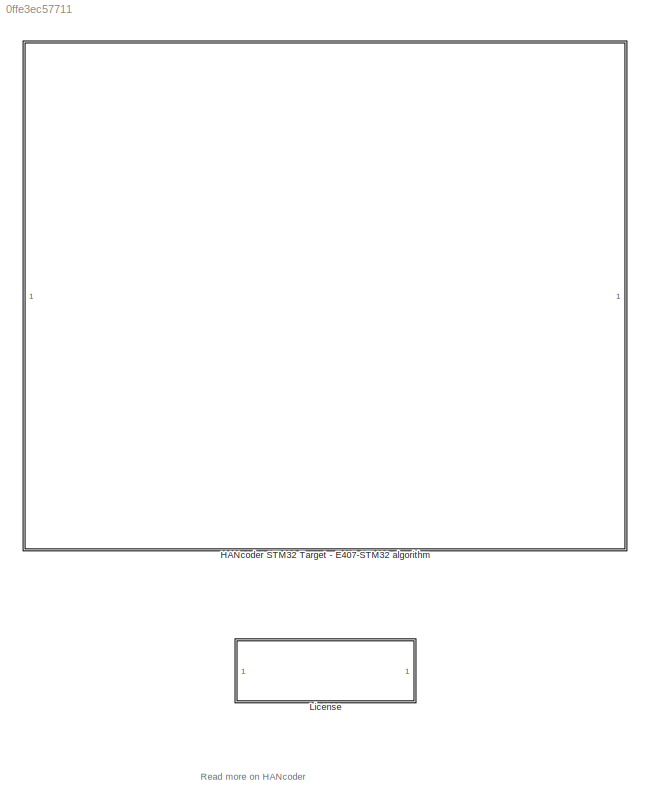
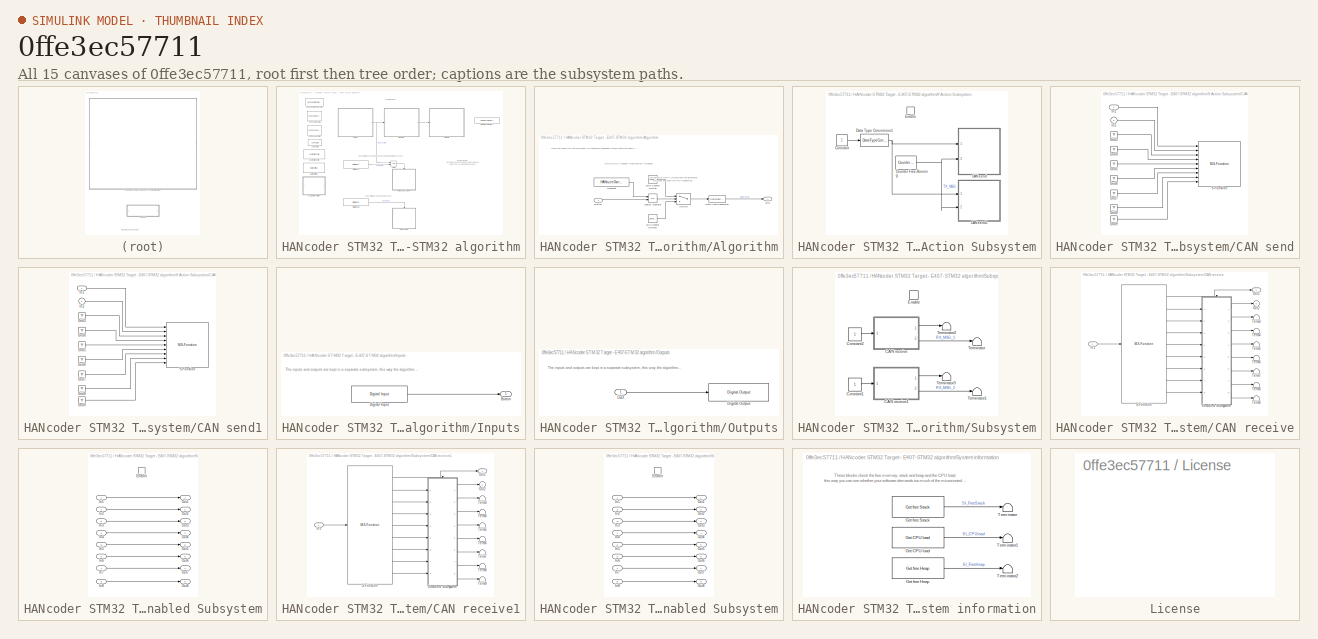
[diagram: thumbnail index - all 15 canvases of the model, root first then tree order]
MODEL slx_0ffe3ec57711
KIND model
CONFIG AbsTol = auto
CONFIG EnableMultiTasking = off
CONFIG FixedStep = 0.01
CONFIG MaxStep = auto
CONFIG MinStep = auto
CONFIG PreLoadFcn = librarySetup\neval([bdroot,'_startup']) %Calling [modelName]_startup.m
CONFIG RelTol = 1e-3
CONFIG SampleTimeConstraint = Unconstrained
CONFIG Solver = FixedStepDiscrete
CONFIG SolverName = FixedStepDiscrete
CONFIG StartTime = 0.0
CONFIG StopTime = 1
BLOCK [SubSystem] HANcoder STM32 Target - E407-STM32 algorithm
  CopyFcn = HANcoderChecks('Copy');
  MoveFcn = HANcoderChecks('MoveE407');
  NameChangeFcn = HANcoderChecks('NameChangeE407');
  Ports = []
  RequestExecContextInheritance = off
BLOCK [Logic] HANcoder STM32 Target - E407-STM32 algorithm/AND3
  AllPortsSameDT = off
  IconShape = distinctive
  OutDataTypeStr = boolean
  Ports = [2, 1]
BLOCK [SubSystem] HANcoder STM32 Target - E407-STM32 algorithm/Algorithm
  Ports = [1, 1]
  RequestExecContextInheritance = off
BLOCK [Reference] HANcoder STM32 Target - E407-STM32 algorithm/Algorithm/10Hz Counter Limiter  REF=simulink/Sources/Counter
Limited
  Ports = [0, 1]
  SourceBlock = simulink/Sources/Counter\nLimited
  SourceProductBaseCode = SL
  SourceProductName = Simulink
  SourceType = Counter Limited
BLOCK [Reference] HANcoder STM32 Target - E407-STM32 algorithm/Algorithm/5Hz Counter Limited  REF=simulink/Sources/Counter
Limited
  Ports = [0, 1]
  SourceBlock = simulink/Sources/Counter\nLimited
  SourceProductBaseCode = SL
  SourceProductName = Simulink
  SourceType = Counter Limited
BLOCK [Inport] HANcoder STM32 Target - E407-STM32 algorithm/Algorithm/Button
  IconDisplay = Port number
BLOCK [Constant] HANcoder STM32 Target - E407-STM32 algorithm/Algorithm/Constant
  OutDataTypeStr = boolean
  Value = HANtuneOverride
BLOCK [DataTypeConversion] HANcoder STM32 Target - E407-STM32 algorithm/Algorithm/Data Type Conversion
  OutDataTypeStr = boolean
  RndMeth = Floor
  SaturateOnIntegerOverflow = off
BLOCK [Outport] HANcoder STM32 Target - E407-STM32 algorithm/Algorithm/LED
  IconDisplay = Port number
BLOCK [Logic] HANcoder STM32 Target - E407-STM32 algorithm/Algorithm/Logical Operator
  AllPortsSameDT = off
  Operator = OR
  OutDataTypeStr = boolean
  Ports = [2, 1]
BLOCK [Switch] HANcoder STM32 Target - E407-STM32 algorithm/Algorithm/Switch
  Criteria = u2 > Threshold
  InputSameDT = off
  SaturateOnIntegerOverflow = off
BLOCK [Reference] HANcoder STM32 Target - E407-STM32 algorithm/Base Sample Time config  REF=HANcoder_STM32_Target/STM32-E407/System Config/Base Sample Time config
  Description = HANcoder Target STM32-E407 blockset version 0.5
  Ports = []
  SourceBlock = HANcoder_STM32_Target/STM32-E407/System Config/Base Sample Time config
  SourceProductName = HANcoder STM32 Target
  SourceType = Base Sample Time config
  Tag = HANcoder_TARGET_STM32_E407
  UserDataPersistent = on
BLOCK [Reference] HANcoder STM32 Target - E407-STM32 algorithm/Build settings  REF=HANcoder_STM32_Target/STM32-E407/System Config/Build settings
  Ports = []
  SourceBlock = HANcoder_STM32_Target/STM32-E407/System Config/Build settings
  SourceProductName = HANcoder STM32 Target
  SourceType = Build Settings
  Tag = HANcoder_TARGET_STM32_E407
  UserDataPersistent = on
BLOCK [Reference] HANcoder STM32 Target - E407-STM32 algorithm/CAN config  REF=HANcoder_STM32_Target/STM32-E407/System Config/CAN config
  Ports = []
  SourceBlock = HANcoder_STM32_Target/STM32-E407/System Config/CAN config
  SourceProductName = HANcoder STM32 Target
  SourceType = CAN config
  Tag = HANcoder_TARGET_STM32_E407
  UserDataPersistent = on
BLOCK [Reference] HANcoder STM32 Target - E407-STM32 algorithm/Custom ID config  REF=HANcoder_STM32_Target/STM32-E407/System Config/Custom ID config
  Ports = []
  SourceBlock = HANcoder_STM32_Target/STM32-E407/System Config/Custom ID config
  SourceProductName = HANcoder STM32 Target
  SourceType = Custom ID config
  Tag = HANcoder_TARGET_STM32_E407
  UserDataPersistent = on
BLOCK [DataStoreMemory] HANcoder STM32 Target - E407-STM32 algorithm/Data Store Memory
  DataStoreName = HANtuneOverride1
  ReadBeforeWriteMsg = warning
  ShowAdditionalParam = off
  WriteAfterReadMsg = warning
  WriteAfterWriteMsg = warning
BLOCK [Reference] HANcoder STM32 Target - E407-STM32 algorithm/Digital Input  REF=HANcoder_STM32_Target/STM32-E407/Digital Inputs/Digital Input
  Ports = [0, 1]
  SourceBlock = HANcoder_STM32_Target/STM32-E407/Digital Inputs/Digital Input
  SourceProductName = HANcoder STM32 Target
  SourceType = Digital Input
  Tag = HANcoder_TARGET_STM32_E407
  UserDataPersistent = on
BLOCK [Reference] HANcoder STM32 Target - E407-STM32 algorithm/Digital Input1  REF=HANcoder_STM32_Target/STM32-E407/Digital Inputs/Digital Input
  Ports = [0, 1]
  SourceBlock = HANcoder_STM32_Target/STM32-E407/Digital Inputs/Digital Input
  SourceProductName = HANcoder STM32 Target
  SourceType = Digital Input
  Tag = HANcoder_TARGET_STM32_E407
  UserDataPersistent = on
BLOCK [SubSystem] HANcoder STM32 Target - E407-STM32 algorithm/If Action Subsystem
  Ports = [0, 0, 1]
  RequestExecContextInheritance = off
  TreatAsAtomicUnit = on
BLOCK [SubSystem] HANcoder STM32 Target - E407-STM32 algorithm/If Action Subsystem/CAN send
  AncestorBlock = HANcoder_STM32_Target/STM32-E407/CAN/CAN/CAN send
  MoveFcn = drawLogos
  Ports = [2]
  RequestExecContextInheritance = off
  Tag = HANcoder_TARGET_STM32_E407
  UserDataPersistent = on
BLOCK [Ground] HANcoder STM32 Target - E407-STM32 algorithm/If Action Subsystem/CAN send/Gnd3
BLOCK [Ground] HANcoder STM32 Target - E407-STM32 algorithm/If Action Subsystem/CAN send/Gnd4
BLOCK [Ground] HANcoder STM32 Target - E407-STM32 algorithm/If Action Subsystem/CAN send/Gnd5
BLOCK [Ground] HANcoder STM32 Target - E407-STM32 algorithm/If Action Subsystem/CAN send/Gnd6
BLOCK [Ground] HANcoder STM32 Target - E407-STM32 algorithm/If Action Subsystem/CAN send/Gnd7
BLOCK [Ground] HANcoder STM32 Target - E407-STM32 algorithm/If Action Subsystem/CAN send/Gnd8
BLOCK [Ground] HANcoder STM32 Target - E407-STM32 algorithm/If Action Subsystem/CAN send/Gnd9
BLOCK [Inport] HANcoder STM32 Target - E407-STM32 algorithm/If Action Subsystem/CAN send/In1
  IconDisplay = Port number
BLOCK [Inport] HANcoder STM32 Target - E407-STM32 algorithm/If Action Subsystem/CAN send/In2
  IconDisplay = Port number
  Port = 2
BLOCK [M-S-Function] HANcoder STM32 Target - E407-STM32 algorithm/If Action Subsystem/CAN send/S-Function
  FunctionName = sfcn_can_send
  Parameters = tsamp, canBus, frameType, inputNumber, dataType, byteOrder
  Ports = [9]
BLOCK [SubSystem] HANcoder STM32 Target - E407-STM32 algorithm/If Action Subsystem/CAN send1
  AncestorBlock = HANcoder_STM32_Target/STM32-E407/CAN/CAN/CAN send
  MoveFcn = drawLogos
  Ports = [2]
  RequestExecContextInheritance = off
  Tag = HANcoder_TARGET_STM32_E407
  UserDataPersistent = on
BLOCK [Ground] HANcoder STM32 Target - E407-STM32 algorithm/If Action Subsystem/CAN send1/Gnd3
BLOCK [Ground] HANcoder STM32 Target - E407-STM32 algorithm/If Action Subsystem/CAN send1/Gnd4
BLOCK [Ground] HANcoder STM32 Target - E407-STM32 algorithm/If Action Subsystem/CAN send1/Gnd5
BLOCK [Ground] HANcoder STM32 Target - E407-STM32 algorithm/If Action Subsystem/CAN send1/Gnd6
BLOCK [Ground] HANcoder STM32 Target - E407-STM32 algorithm/If Action Subsystem/CAN send1/Gnd7
BLOCK [Ground] HANcoder STM32 Target - E407-STM32 algorithm/If Action Subsystem/CAN send1/Gnd8
BLOCK [Ground] HANcoder STM32 Target - E407-STM32 algorithm/If Action Subsystem/CAN send1/Gnd9
BLOCK [Inport] HANcoder STM32 Target - E407-STM32 algorithm/If Action Subsystem/CAN send1/In1
  IconDisplay = Port number
BLOCK [Inport] HANcoder STM32 Target - E407-STM32 algorithm/If Action Subsystem/CAN send1/In2
  IconDisplay = Port number
  Port = 2
BLOCK [M-S-Function] HANcoder STM32 Target - E407-STM32 algorithm/If Action Subsystem/CAN send1/S-Function
  FunctionName = sfcn_can_send
  Parameters = tsamp, canBus, frameType, inputNumber, dataType, byteOrder
  Ports = [9]
BLOCK [Constant] HANcoder STM32 Target - E407-STM32 algorithm/If Action Subsystem/Constant
BLOCK [Reference] HANcoder STM32 Target - E407-STM32 algorithm/If Action Subsystem/Counter Free-Running  REF=simulink/Sources/Counter
Free-Running
  Ports = [0, 1]
  SourceBlock = simulink/Sources/Counter\nFree-Running
  SourceProductBaseCode = SL
  SourceProductName = Simulink
  SourceType = Counter Free-Running
BLOCK [DataTypeConversion] HANcoder STM32 Target - E407-STM32 algorithm/If Action Subsystem/Data Type Conversion1
  OutDataTypeStr = uint32
  RndMeth = Floor
  SaturateOnIntegerOverflow = off
BLOCK [EnablePort] HANcoder STM32 Target - E407-STM32 algorithm/If Action Subsystem/Enable
  Ports = []
BLOCK [SubSystem] HANcoder STM32 Target - E407-STM32 algorithm/Inputs
  Ports = [0, 1]
  RequestExecContextInheritance = off
BLOCK [Outport] HANcoder STM32 Target - E407-STM32 algorithm/Inputs/Button
  IconDisplay = Port number
BLOCK [Reference] HANcoder STM32 Target - E407-STM32 algorithm/Inputs/Digital Input  REF=HANcoder_STM32_Target/STM32-E407/Digital Inputs/Digital Input
  Ports = [0, 1]
  SourceBlock = HANcoder_STM32_Target/STM32-E407/Digital Inputs/Digital Input
  SourceProductName = HANcoder STM32 Target
  SourceType = Digital Input
  Tag = HANcoder_TARGET_STM32_E407
  UserDataPersistent = on
BLOCK [SubSystem] HANcoder STM32 Target - E407-STM32 algorithm/Outputs
  Ports = [1]
  RequestExecContextInheritance = off
BLOCK [Reference] HANcoder STM32 Target - E407-STM32 algorithm/Outputs/Digital Output  REF=HANcoder_STM32_Target/STM32-E407/Digital Outputs/Digital Output
  Ports = [1]
  SourceBlock = HANcoder_STM32_Target/STM32-E407/Digital Outputs/Digital Output
  SourceProductName = HANcoder STM32 Target
  SourceType = Digital Output
  Tag = HANcoder_TARGET_STM32_E407
  UserDataPersistent = on
BLOCK [Inport] HANcoder STM32 Target - E407-STM32 algorithm/Outputs/LED
  IconDisplay = Port number
BLOCK [SubSystem] HANcoder STM32 Target - E407-STM32 algorithm/Subsystem
  Ports = [0, 0, 1]
  RequestExecContextInheritance = off
BLOCK [SubSystem] HANcoder STM32 Target - E407-STM32 algorithm/Subsystem/CAN receive
  AncestorBlock = HANcoder_STM32_Target/STM32-E407/CAN/CAN/CAN receive
  MoveFcn = drawLogos
  Ports = [1, 2]
  RequestExecContextInheritance = off
  Tag = HANcoder_TARGET_STM32_E407
  UserDataPersistent = on
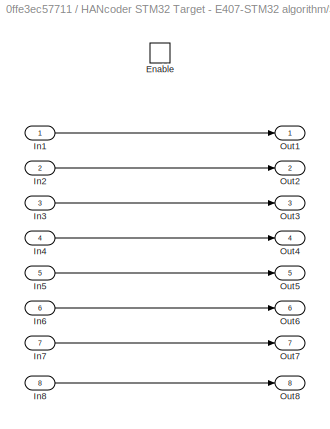
BLOCK [SubSystem] HANcoder STM32 Target - E407-STM32 algorithm/Subsystem/CAN receive/Enabled Subsystem
  Ports = [8, 8, 1]
  RequestExecContextInheritance = off
  TreatAsAtomicUnit = on
BLOCK [EnablePort] HANcoder STM32 Target - E407-STM32 algorithm/Subsystem/CAN receive/Enabled Subsystem/Enable
  Ports = []
BLOCK [Inport] HANcoder STM32 Target - E407-STM32 algorithm/Subsystem/CAN receive/Enabled Subsystem/In1
  IconDisplay = Port number
BLOCK [Inport] HANcoder STM32 Target - E407-STM32 algorithm/Subsystem/CAN receive/Enabled Subsystem/In2
  IconDisplay = Port number
  Port = 2
BLOCK [Inport] HANcoder STM32 Target - E407-STM32 algorithm/Subsystem/CAN receive/Enabled Subsystem/In3
  IconDisplay = Port number
  Port = 3
BLOCK [Inport] HANcoder STM32 Target - E407-STM32 algorithm/Subsystem/CAN receive/Enabled Subsystem/In4
  IconDisplay = Port number
  Port = 4
BLOCK [Inport] HANcoder STM32 Target - E407-STM32 algorithm/Subsystem/CAN receive/Enabled Subsystem/In5
  IconDisplay = Port number
  Port = 5
BLOCK [Inport] HANcoder STM32 Target - E407-STM32 algorithm/Subsystem/CAN receive/Enabled Subsystem/In6
  IconDisplay = Port number
  Port = 6
BLOCK [Inport] HANcoder STM32 Target - E407-STM32 algorithm/Subsystem/CAN receive/Enabled Subsystem/In7
  IconDisplay = Port number
  Port = 7
BLOCK [Inport] HANcoder STM32 Target - E407-STM32 algorithm/Subsystem/CAN receive/Enabled Subsystem/In8
  IconDisplay = Port number
  Port = 8
BLOCK [Outport] HANcoder STM32 Target - E407-STM32 algorithm/Subsystem/CAN receive/Enabled Subsystem/Out1
  IconDisplay = Port number
BLOCK [Outport] HANcoder STM32 Target - E407-STM32 algorithm/Subsystem/CAN receive/Enabled Subsystem/Out2
  IconDisplay = Port number
  Port = 2
BLOCK [Outport] HANcoder STM32 Target - E407-STM32 algorithm/Subsystem/CAN receive/Enabled Subsystem/Out3
  IconDisplay = Port number
  Port = 3
BLOCK [Outport] HANcoder STM32 Target - E407-STM32 algorithm/Subsystem/CAN receive/Enabled Subsystem/Out4
  IconDisplay = Port number
  Port = 4
BLOCK [Outport] HANcoder STM32 Target - E407-STM32 algorithm/Subsystem/CAN receive/Enabled Subsystem/Out5
  IconDisplay = Port number
  Port = 5
BLOCK [Outport] HANcoder STM32 Target - E407-STM32 algorithm/Subsystem/CAN receive/Enabled Subsystem/Out6
  IconDisplay = Port number
  Port = 6
BLOCK [Outport] HANcoder STM32 Target - E407-STM32 algorithm/Subsystem/CAN receive/Enabled Subsystem/Out7
  IconDisplay = Port number
  Port = 7
BLOCK [Outport] HANcoder STM32 Target - E407-STM32 algorithm/Subsystem/CAN receive/Enabled Subsystem/Out8
  IconDisplay = Port number
  Port = 8
BLOCK [Inport] HANcoder STM32 Target - E407-STM32 algorithm/Subsystem/CAN receive/In1
  IconDisplay = Port number
BLOCK [Outport] HANcoder STM32 Target - E407-STM32 algorithm/Subsystem/CAN receive/Out1
  IconDisplay = Port number
BLOCK [Outport] HANcoder STM32 Target - E407-STM32 algorithm/Subsystem/CAN receive/Out2
  IconDisplay = Port number
  Port = 2
BLOCK [M-S-Function] HANcoder STM32 Target - E407-STM32 algorithm/Subsystem/CAN receive/S-Function
  FunctionName = sfcn_can_receive
  Parameters = tsamp, canBus, outputNumber, dataType, byteOrder
  Ports = [1, 9]
BLOCK [Terminator] HANcoder STM32 Target - E407-STM32 algorithm/Subsystem/CAN receive/Term3
BLOCK [Terminator] HANcoder STM32 Target - E407-STM32 algorithm/Subsystem/CAN receive/Term4
BLOCK [Terminator] HANcoder STM32 Target - E407-STM32 algorithm/Subsystem/CAN receive/Term5
BLOCK [Terminator] HANcoder STM32 Target - E407-STM32 algorithm/Subsystem/CAN receive/Term6
BLOCK [Terminator] HANcoder STM32 Target - E407-STM32 algorithm/Subsystem/CAN receive/Term7
BLOCK [Terminator] HANcoder STM32 Target - E407-STM32 algorithm/Subsystem/CAN receive/Term8
BLOCK [Terminator] HANcoder STM32 Target - E407-STM32 algorithm/Subsystem/CAN receive/Term9
BLOCK [SubSystem] HANcoder STM32 Target - E407-STM32 algorithm/Subsystem/CAN receive1
  AncestorBlock = HANcoder_STM32_Target/STM32-E407/CAN/CAN/CAN receive
  MoveFcn = drawLogos
  Ports = [1, 2]
  RequestExecContextInheritance = off
  Tag = HANcoder_TARGET_STM32_E407
  UserDataPersistent = on
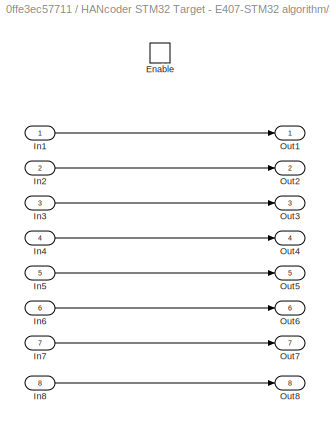
BLOCK [SubSystem] HANcoder STM32 Target - E407-STM32 algorithm/Subsystem/CAN receive1/Enabled Subsystem
  Ports = [8, 8, 1]
  RequestExecContextInheritance = off
  TreatAsAtomicUnit = on
BLOCK [EnablePort] HANcoder STM32 Target - E407-STM32 algorithm/Subsystem/CAN receive1/Enabled Subsystem/Enable
  Ports = []
BLOCK [Inport] HANcoder STM32 Target - E407-STM32 algorithm/Subsystem/CAN receive1/Enabled Subsystem/In1
  IconDisplay = Port number
BLOCK [Inport] HANcoder STM32 Target - E407-STM32 algorithm/Subsystem/CAN receive1/Enabled Subsystem/In2
  IconDisplay = Port number
  Port = 2
BLOCK [Inport] HANcoder STM32 Target - E407-STM32 algorithm/Subsystem/CAN receive1/Enabled Subsystem/In3
  IconDisplay = Port number
  Port = 3
BLOCK [Inport] HANcoder STM32 Target - E407-STM32 algorithm/Subsystem/CAN receive1/Enabled Subsystem/In4
  IconDisplay = Port number
  Port = 4
BLOCK [Inport] HANcoder STM32 Target - E407-STM32 algorithm/Subsystem/CAN receive1/Enabled Subsystem/In5
  IconDisplay = Port number
  Port = 5
BLOCK [Inport] HANcoder STM32 Target - E407-STM32 algorithm/Subsystem/CAN receive1/Enabled Subsystem/In6
  IconDisplay = Port number
  Port = 6
BLOCK [Inport] HANcoder STM32 Target - E407-STM32 algorithm/Subsystem/CAN receive1/Enabled Subsystem/In7
  IconDisplay = Port number
  Port = 7
BLOCK [Inport] HANcoder STM32 Target - E407-STM32 algorithm/Subsystem/CAN receive1/Enabled Subsystem/In8
  IconDisplay = Port number
  Port = 8
BLOCK [Outport] HANcoder STM32 Target - E407-STM32 algorithm/Subsystem/CAN receive1/Enabled Subsystem/Out1
  IconDisplay = Port number
BLOCK [Outport] HANcoder STM32 Target - E407-STM32 algorithm/Subsystem/CAN receive1/Enabled Subsystem/Out2
  IconDisplay = Port number
  Port = 2
BLOCK [Outport] HANcoder STM32 Target - E407-STM32 algorithm/Subsystem/CAN receive1/Enabled Subsystem/Out3
  IconDisplay = Port number
  Port = 3
BLOCK [Outport] HANcoder STM32 Target - E407-STM32 algorithm/Subsystem/CAN receive1/Enabled Subsystem/Out4
  IconDisplay = Port number
  Port = 4
BLOCK [Outport] HANcoder STM32 Target - E407-STM32 algorithm/Subsystem/CAN receive1/Enabled Subsystem/Out5
  IconDisplay = Port number
  Port = 5
BLOCK [Outport] HANcoder STM32 Target - E407-STM32 algorithm/Subsystem/CAN receive1/Enabled Subsystem/Out6
  IconDisplay = Port number
  Port = 6
BLOCK [Outport] HANcoder STM32 Target - E407-STM32 algorithm/Subsystem/CAN receive1/Enabled Subsystem/Out7
  IconDisplay = Port number
  Port = 7
BLOCK [Outport] HANcoder STM32 Target - E407-STM32 algorithm/Subsystem/CAN receive1/Enabled Subsystem/Out8
  IconDisplay = Port number
  Port = 8
BLOCK [Inport] HANcoder STM32 Target - E407-STM32 algorithm/Subsystem/CAN receive1/In1
  IconDisplay = Port number
BLOCK [Outport] HANcoder STM32 Target - E407-STM32 algorithm/Subsystem/CAN receive1/Out1
  IconDisplay = Port number
BLOCK [Outport] HANcoder STM32 Target - E407-STM32 algorithm/Subsystem/CAN receive1/Out2
  IconDisplay = Port number
  Port = 2
BLOCK [M-S-Function] HANcoder STM32 Target - E407-STM32 algorithm/Subsystem/CAN receive1/S-Function
  FunctionName = sfcn_can_receive
  Parameters = tsamp, canBus, outputNumber, dataType, byteOrder
  Ports = [1, 9]
BLOCK [Terminator] HANcoder STM32 Target - E407-STM32 algorithm/Subsystem/CAN receive1/Term3
BLOCK [Terminator] HANcoder STM32 Target - E407-STM32 algorithm/Subsystem/CAN receive1/Term4
BLOCK [Terminator] HANcoder STM32 Target - E407-STM32 algorithm/Subsystem/CAN receive1/Term5
BLOCK [Terminator] HANcoder STM32 Target - E407-STM32 algorithm/Subsystem/CAN receive1/Term6
BLOCK [Terminator] HANcoder STM32 Target - E407-STM32 algorithm/Subsystem/CAN receive1/Term7
BLOCK [Terminator] HANcoder STM32 Target - E407-STM32 algorithm/Subsystem/CAN receive1/Term8
BLOCK [Terminator] HANcoder STM32 Target - E407-STM32 algorithm/Subsystem/CAN receive1/Term9
BLOCK [Constant] HANcoder STM32 Target - E407-STM32 algorithm/Subsystem/Constant1
  OutDataTypeStr = uint32
BLOCK [Constant] HANcoder STM32 Target - E407-STM32 algorithm/Subsystem/Constant2
  OutDataTypeStr = uint32
BLOCK [EnablePort] HANcoder STM32 Target - E407-STM32 algorithm/Subsystem/Enable
  Ports = []
BLOCK [Terminator] HANcoder STM32 Target - E407-STM32 algorithm/Subsystem/Terminator
BLOCK [Terminator] HANcoder STM32 Target - E407-STM32 algorithm/Subsystem/Terminator1
BLOCK [Terminator] HANcoder STM32 Target - E407-STM32 algorithm/Subsystem/Terminator2
BLOCK [Terminator] HANcoder STM32 Target - E407-STM32 algorithm/Subsystem/Terminator3
BLOCK [SubSystem] HANcoder STM32 Target - E407-STM32 algorithm/System information
  Ports = []
  RequestExecContextInheritance = off
BLOCK [Reference] HANcoder STM32 Target - E407-STM32 algorithm/System information/Get CPU load  REF=HANcoder_STM32_Target/STM32-E407/System Management/Get CPU load
  Ports = [0, 1]
  SourceBlock = HANcoder_STM32_Target/STM32-E407/System Management/Get CPU load
  SourceProductName = HANcoder STM32 Target
  SourceType = Get CPU load
  Tag = HANcoder_TARGET_STM32_E407
  UserDataPersistent = on
BLOCK [Reference] HANcoder STM32 Target - E407-STM32 algorithm/System information/Get free Heap  REF=HANcoder_STM32_Target/STM32-E407/System Management/Get free Heap
  Ports = [0, 1]
  SourceBlock = HANcoder_STM32_Target/STM32-E407/System Management/Get free Heap
  SourceProductName = HANcoder STM32 Target
  SourceType = Get free Heap
  Tag = HANcoder_TARGET_STM32_E407
  UserDataPersistent = on
BLOCK [Reference] HANcoder STM32 Target - E407-STM32 algorithm/System information/Get free Stack  REF=HANcoder_STM32_Target/STM32-E407/System Management/Get free Stack
  Ports = [0, 1]
  SourceBlock = HANcoder_STM32_Target/STM32-E407/System Management/Get free Stack
  SourceProductName = HANcoder STM32 Target
  SourceType = Get free Stacl
  Tag = HANcoder_TARGET_STM32_E407
  UserDataPersistent = on
BLOCK [Terminator] HANcoder STM32 Target - E407-STM32 algorithm/System information/Terminator
BLOCK [Terminator] HANcoder STM32 Target - E407-STM32 algorithm/System information/Terminator1
BLOCK [Terminator] HANcoder STM32 Target - E407-STM32 algorithm/System information/Terminator2
BLOCK [Reference] HANcoder STM32 Target - E407-STM32 algorithm/XCP on CAN config  REF=HANcoder_STM32_Target/STM32-E407/System Config/XCP on CAN config
  Commented = on
  Ports = []
  SourceBlock = HANcoder_STM32_Target/STM32-E407/System Config/XCP on CAN config
  SourceProductName = HANcoder STM32 Target
  SourceType = XCP on CAN config
  Tag = HANcoder_TARGET_STM32_E407
  UserDataPersistent = on
BLOCK [Reference] HANcoder STM32 Target - E407-STM32 algorithm/XCP on USB config  REF=HANcoder_STM32_Target/STM32-E407/System Config/XCP on USB config
  Ports = []
  SourceBlock = HANcoder_STM32_Target/STM32-E407/System Config/XCP on USB config
  SourceProductName = HANcoder STM32 Target
  SourceType = XCP on USB config
  Tag = HANcoder_TARGET_STM32_E407
  UserDataPersistent = on
BLOCK [SubSystem] License
  MoveFcn = HANcoderChecks('MoveLicenseBlock');
  NameChangeFcn = HANcoderChecks('NameChangeLicenseBlock');
  OpenFcn = winopen('License.pdf')
  Ports = []
  RequestExecContextInheritance = off
  ShowPortLabels = none
ANNOTATION (root): Read more on HANcoder
ANNOTATION HANcoder STM32 Target - E407-STM32 algorithm: Basic principle: - Board id 1 sends a count over both CAN buses. - Other board receives the messages.
ANNOTATION HANcoder STM32 Target - E407-STM32 algorithm: Board with ID 2 receives the messages
ANNOTATION HANcoder STM32 Target - E407-STM32 algorithm: Board with ID1 sends a message when the WKUP Button is pressed
ANNOTATION HANcoder STM32 Target - E407-STM32 algorithm: Template model
ANNOTATION HANcoder STM32 Target - E407-STM32 algorithm/Algorithm: Here the algorithm can be placed. No hardware dependent blocks should be used here.
ANNOTATION HANcoder STM32 Target - E407-STM32 algorithm/Algorithm: Switch LED frequency when button is pressed
ANNOTATION HANcoder STM32 Target - E407-STM32 algorithm/Algorithm: The button or the HANtuneOverride parameter switches between the two frequencies.
ANNOTATION HANcoder STM32 Target - E407-STM32 algorithm/Inputs: The inputs and outputs are kept in a separate subsystem, this way the algorithm can easily be transferred to different hardware
ANNOTATION HANcoder STM32 Target - E407-STM32 algorithm/Outputs: The inputs and outputs are kept in a separate subsystem, this way the algorithm can easily be transferred to different hardware
ANNOTATION HANcoder STM32 Target - E407-STM32 algorithm/System information: These blocks check the free memory: stack and heap and the CPU load, this way you can see whether your software demands too much of the microcontroller
LINE HANcoder STM32 Target - E407-STM32 algorithm/AND3:1 -> HANcoder STM32 Target - E407-STM32 algorithm/If Action Subsystem:enable
LINE HANcoder STM32 Target - E407-STM32 algorithm/Algorithm/10Hz Counter Limiter:1 -> HANcoder STM32 Target - E407-STM32 algorithm/Algorithm/Switch:1
LINE HANcoder STM32 Target - E407-STM32 algorithm/Algorithm/5Hz Counter Limited:1 -> HANcoder STM32 Target - E407-STM32 algorithm/Algorithm/Switch:3
LINE HANcoder STM32 Target - E407-STM32 algorithm/Algorithm/Button:1 -> HANcoder STM32 Target - E407-STM32 algorithm/Algorithm/Logical Operator:2
LINE HANcoder STM32 Target - E407-STM32 algorithm/Algorithm/Constant:1 -> HANcoder STM32 Target - E407-STM32 algorithm/Algorithm/Logical Operator:1
LINE HANcoder STM32 Target - E407-STM32 algorithm/Algorithm/Data Type Conversion:1 -> HANcoder STM32 Target - E407-STM32 algorithm/Algorithm/LED:1
LINE HANcoder STM32 Target - E407-STM32 algorithm/Algorithm/Logical Operator:1 -> HANcoder STM32 Target - E407-STM32 algorithm/Algorithm/Switch:2
LINE HANcoder STM32 Target - E407-STM32 algorithm/Algorithm/Switch:1 -> HANcoder STM32 Target - E407-STM32 algorithm/Algorithm/Data Type Conversion:1
LINE HANcoder STM32 Target - E407-STM32 algorithm/Algorithm:1 -> HANcoder STM32 Target - E407-STM32 algorithm/Outputs:1
LINE HANcoder STM32 Target - E407-STM32 algorithm/Digital Input1:1 -> HANcoder STM32 Target - E407-STM32 algorithm/Subsystem:enable
LINE HANcoder STM32 Target - E407-STM32 algorithm/Digital Input:1 -> HANcoder STM32 Target - E407-STM32 algorithm/AND3:2
LINE HANcoder STM32 Target - E407-STM32 algorithm/If Action Subsystem/Constant:1 -> HANcoder STM32 Target - E407-STM32 algorithm/If Action Subsystem/Data Type Conversion1:1
NET HANcoder STM32 Target - E407-STM32 algorithm/If Action Subsystem/Counter Free-Running:1 -> HANcoder STM32 Target - E407-STM32 algorithm/If Action Subsystem/CAN send1:2, HANcoder STM32 Target - E407-STM32 algorithm/If Action Subsystem/CAN send:2
NET HANcoder STM32 Target - E407-STM32 algorithm/If Action Subsystem/Data Type Conversion1:1 -> HANcoder STM32 Target - E407-STM32 algorithm/If Action Subsystem/CAN send1:1, HANcoder STM32 Target - E407-STM32 algorithm/If Action Subsystem/CAN send:1
LINE HANcoder STM32 Target - E407-STM32 algorithm/Inputs/Digital Input:1 -> HANcoder STM32 Target - E407-STM32 algorithm/Inputs/Button:1
NET HANcoder STM32 Target - E407-STM32 algorithm/Inputs:1 -> HANcoder STM32 Target - E407-STM32 algorithm/AND3:1, HANcoder STM32 Target - E407-STM32 algorithm/Algorithm:1
LINE HANcoder STM32 Target - E407-STM32 algorithm/Outputs/LED:1 -> HANcoder STM32 Target - E407-STM32 algorithm/Outputs/Digital Output:1
LINE HANcoder STM32 Target - E407-STM32 algorithm/Subsystem/CAN receive1:1 -> HANcoder STM32 Target - E407-STM32 algorithm/Subsystem/Terminator3:1
LINE HANcoder STM32 Target - E407-STM32 algorithm/Subsystem/CAN receive1:2 -> HANcoder STM32 Target - E407-STM32 algorithm/Subsystem/Terminator1:1
LINE HANcoder STM32 Target - E407-STM32 algorithm/Subsystem/CAN receive:1 -> HANcoder STM32 Target - E407-STM32 algorithm/Subsystem/Terminator2:1
LINE HANcoder STM32 Target - E407-STM32 algorithm/Subsystem/CAN receive:2 -> HANcoder STM32 Target - E407-STM32 algorithm/Subsystem/Terminator:1
LINE HANcoder STM32 Target - E407-STM32 algorithm/Subsystem/Constant1:1 -> HANcoder STM32 Target - E407-STM32 algorithm/Subsystem/CAN receive1:1
LINE HANcoder STM32 Target - E407-STM32 algorithm/Subsystem/Constant2:1 -> HANcoder STM32 Target - E407-STM32 algorithm/Subsystem/CAN receive:1
LINE HANcoder STM32 Target - E407-STM32 algorithm/System information/Get CPU load:1 -> HANcoder STM32 Target - E407-STM32 algorithm/System information/Terminator1:1
LINE HANcoder STM32 Target - E407-STM32 algorithm/System information/Get free Heap:1 -> HANcoder STM32 Target - E407-STM32 algorithm/System information/Terminator2:1
LINE HANcoder STM32 Target - E407-STM32 algorithm/System information/Get free Stack:1 -> HANcoder STM32 Target - E407-STM32 algorithm/System information/Terminator:1
note: NET lines group one-source signal fan-out (src -> all destinations, sorted); 1:1 wires keep LINE
